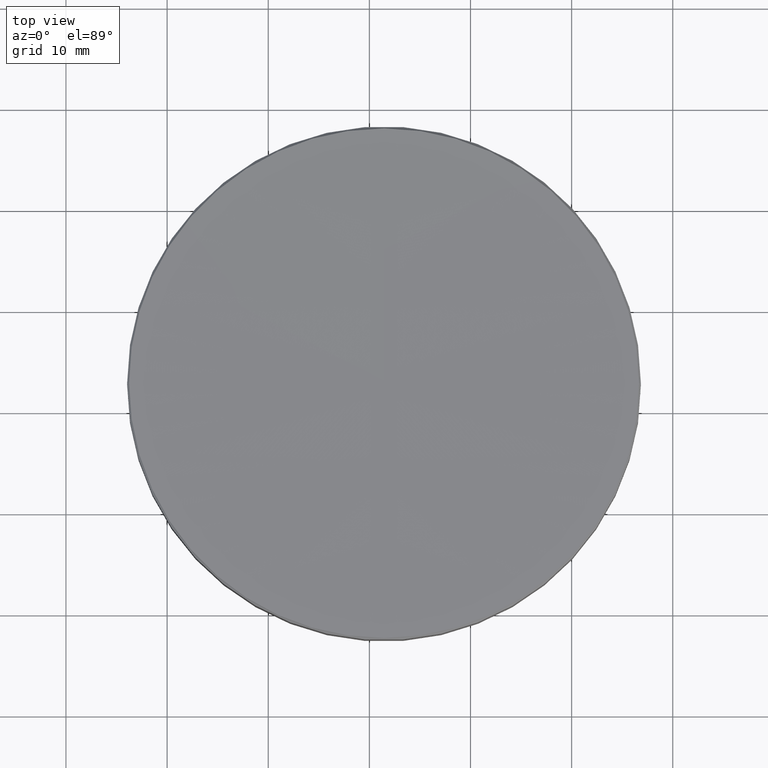
[diagram: clean part render]
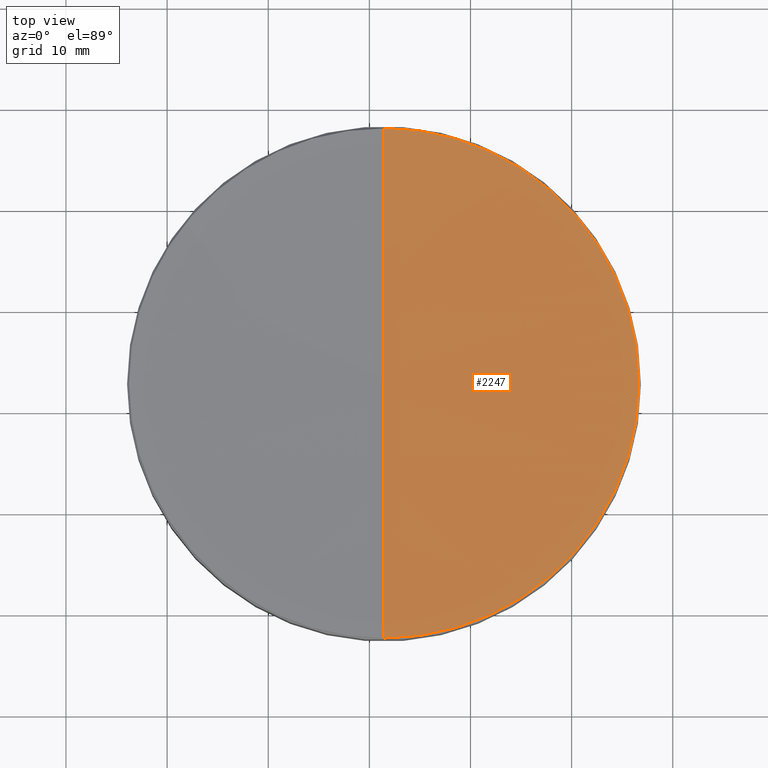
[diagram: same view with one face highlighted and labeled with its STEP entity id]
A machine part, top view. The second image highlights one B-rep face of the part: STEP entity #2247.
In plain terms, the highlighted spherical surface has radius 2000 mm.
Its self-contained STEP definition (entity closure, byte-faithful):
#13 = VERTEX_POINT ( 'NONE', #29 ) ;
#29 = CARTESIAN_POINT ( 'NONE',  ( 36.65022584895574909, 32.83770453264028077, 43.40056768027252332 ) ) ;
#51 = CARTESIAN_POINT ( 'NONE',  ( 11.44772713437241762, 32.83770453264028077, 2043.241776668105558 ) ) ;
#145 = DIRECTION ( 'NONE',  ( -0.0000000000000000000, -0.0000000000000000000, 1.000000000000000000 ) ) ;
#150 = AXIS2_PLACEMENT_3D ( 'NONE', #51, #576, #2336 ) ;
#257 = CARTESIAN_POINT ( 'NONE',  ( 11.44772713437241762, 32.83770453264040867, 43.24176989126149806 ) ) ;
#286 = AXIS2_PLACEMENT_3D ( 'NONE', #2859, #145, #1176 ) ;
#290 = CIRCLE ( 'NONE', #2361, 25.20249871458333146 ) ;
#427 = CIRCLE ( 'NONE', #286, 25.20249871458333146 ) ;
#511 = CIRCLE ( 'NONE', #2975, 2000.000006776843975 ) ;
#536 = ORIENTED_EDGE ( 'NONE', *, *, #4017, .T. ) ;
#542 = ORIENTED_EDGE ( 'NONE', *, *, #3409, .T. ) ;
#576 = DIRECTION ( 'NONE',  ( -1.000000000000000000, 0.0000000000000000000, 0.0000000000000000000 ) ) ;
#641 = VERTEX_POINT ( 'NONE', #257 ) ;
#671 = VERTEX_POINT ( 'NONE', #3788 ) ;
#684 = EDGE_CURVE ( 'NONE', #641, #671, #3178, .T. ) ;
#711 = CARTESIAN_POINT ( 'NONE',  ( 11.44772713437241762, 32.83770453264028077, 2043.241776668105558 ) ) ;
#774 = DIRECTION ( 'NONE',  ( 1.000000000000000000, 0.0000000000000000000, 0.0000000000000000000 ) ) ;
#1176 = DIRECTION ( 'NONE',  ( 1.000000000000000000, 0.0000000000000000000, 0.0000000000000000000 ) ) ;
#1258 = EDGE_CURVE ( 'NONE', #13, #671, #427, .T. ) ;
#1532 = DIRECTION ( 'NONE',  ( -0.0000000000000000000, -0.0000000000000000000, 1.000000000000000000 ) ) ;
#1586 = CARTESIAN_POINT ( 'NONE',  ( 11.44772713437241762, 32.83770453264028077, 2043.241776668105558 ) ) ;
#1747 = DIRECTION ( 'NONE',  ( 1.000000000000000000, -0.0000000000000000000, 0.0000000000000000000 ) ) ;
#2071 = ORIENTED_EDGE ( 'NONE', *, *, #684, .F. ) ;
#2189 = SPHERICAL_SURFACE ( 'NONE', #150, 2000.000006776843975 ) ;
#2247 = ADVANCED_FACE ( 'NONE', ( #3534 ), #2189, .F. ) ;
#2274 = DIRECTION ( 'NONE',  ( -1.000000000000000000, 1.224646799147353207E-16, 0.0000000000000000000 ) ) ;
#2327 = CARTESIAN_POINT ( 'NONE',  ( 11.44772713437241407, 7.635205818059740857, 43.40056768027237410 ) ) ;
#2336 = DIRECTION ( 'NONE',  ( 0.0000000000000000000, 1.000000000000000000, 0.0000000000000000000 ) ) ;
#2361 = AXIS2_PLACEMENT_3D ( 'NONE', #3186, #1532, #774 ) ;
#2859 = CARTESIAN_POINT ( 'NONE',  ( 11.44772713437241762, 32.83770453264028077, 43.40056768027252332 ) ) ;
#2975 = AXIS2_PLACEMENT_3D ( 'NONE', #1586, #2274, #3592 ) ;
#3110 = ORIENTED_EDGE ( 'NONE', *, *, #1258, .T. ) ;
#3178 = CIRCLE ( 'NONE', #3910, 2000.000006776843975 ) ;
#3186 = CARTESIAN_POINT ( 'NONE',  ( 11.44772713437241762, 32.83770453264028077, 43.40056768027252332 ) ) ;
#3353 = VERTEX_POINT ( 'NONE', #2327 ) ;
#3409 = EDGE_CURVE ( 'NONE', #3353, #13, #290, .T. ) ;
#3534 = FACE_OUTER_BOUND ( 'NONE', #4333, .T. ) ;
#3592 = DIRECTION ( 'NONE',  ( -1.222980046419676631E-16, -1.000000000000000000, 0.0000000000000000000 ) ) ;
#3788 = CARTESIAN_POINT ( 'NONE',  ( 11.44772713437241762, 58.04020324722082336, 43.40056768027237410 ) ) ;
#3910 = AXIS2_PLACEMENT_3D ( 'NONE', #711, #1747, #4446 ) ;
#4017 = EDGE_CURVE ( 'NONE', #641, #3353, #511, .T. ) ;
#4333 = EDGE_LOOP ( 'NONE', ( #2071, #536, #542, #3110 ) ) ;
#4446 = DIRECTION ( 'NONE',  ( 0.0000000000000000000, 0.0000000000000000000, -1.000000000000000000 ) ) ;